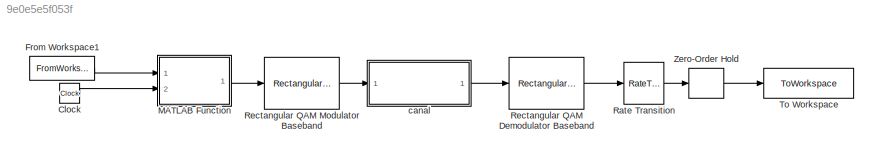
MODEL slx_9e0e5e5f053f
KIND model
CONFIG AbsTol = auto
CONFIG EnableMultiTasking = off
CONFIG FixedStep = auto
CONFIG MaxStep = 1e-3
CONFIG MinStep = 1e-4
CONFIG RelTol = 1e-3
CONFIG SampleTimeConstraint = Unconstrained
CONFIG SolverName = VariableStepAuto
CONFIG StartTime = 0.0
CONFIG StopTime = 203*6
BLOCK [Clock] Clock
BLOCK [FromWorkspace] From Workspace1
  VariableName = binary
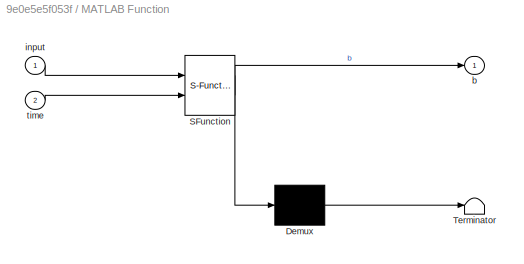
BLOCK [SubSystem] MATLAB Function
  ErrorFcn = Stateflow.Translate.translate
  PermitHierarchicalResolution = ExplicitOnly
  Ports = [2, 1]
  RequestExecContextInheritance = off
  SFBlockType = MATLAB Function
  TreatAsAtomicUnit = on
BLOCK [Demux] MATLAB Function/ Demux 
  Outputs = 1
  Ports = [1, 1]
BLOCK [S-Function] MATLAB Function/ SFunction 
  EnableBusSupport = on
  FunctionName = sf_sfun
  PortCounts = [2 2]
  Ports = [2, 2]
  SFcnIsStateOwnerBlock = off
  SFunctionDeploymentMode = off
  Tag = Stateflow S-Function 2
BLOCK [Terminator] MATLAB Function/ Terminator 
BLOCK [Outport] MATLAB Function/b
BLOCK [Inport] MATLAB Function/input
BLOCK [Inport] MATLAB Function/time
  Port = 2
BLOCK [RateTransition] Rate Transition
BLOCK [Reference] Rectangular QAM Demodulator Baseband  REF=commdigbbndam3/Rectangular QAM
Demodulator
Baseband
  Ports = [1, 1]
  SourceBlock = commdigbbndam3/Rectangular QAM\nDemodulator\nBaseband
  SourceProductBaseCode = CM
  SourceType = Rectangular QAM Demodulator Baseband
BLOCK [Reference] Rectangular QAM Modulator Baseband  REF=commdigbbndam3/Rectangular QAM
Modulator
Baseband
  Ports = [1, 1]
  SourceBlock = commdigbbndam3/Rectangular QAM\nModulator\nBaseband
  SourceProductBaseCode = CM
  SourceType = Rectangular QAM Modulator Baseband
BLOCK [ToWorkspace] To Workspace
  FixptAsFi = on
  MaxDataPoints = inf
  Ports = [1]
  SampleTime = -1
  SaveFormat = Timeseries
  VariableName = out
BLOCK [ZeroOrderHold] Zero-Order Hold
  SampleTime = 6
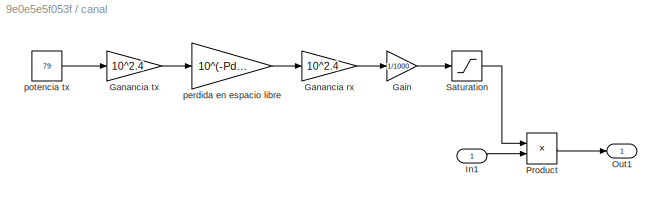
BLOCK [SubSystem] canal
  Ports = [1, 1]
  RequestExecContextInheritance = off
BLOCK [Gain] canal/Gain
  Gain = 1/1000
BLOCK [Gain] canal/Ganancia rx
  Gain = 10^2.4
BLOCK [Gain] canal/Ganancia tx
  Gain = 10^2.4
BLOCK [Inport] canal/In1
BLOCK [Outport] canal/Out1
BLOCK [Product] canal/Product
  Ports = [2, 1]
BLOCK [Saturate] canal/Saturation
  LowerLimit = 0
  UpperLimit = 1
BLOCK [Gain] canal/perdida en espacio libre
  Gain = 10^(-Pd/20)
BLOCK [Constant] canal/potencia tx
  Value = 79
LINE Clock:1 -> MATLAB Function:2
LINE From Workspace1:1 -> MATLAB Function:1
LINE MATLAB Function:1 -> Rectangular QAM Modulator Baseband:1
LINE Rate Transition:1 -> Zero-Order Hold:1
LINE Rectangular QAM Demodulator Baseband:1 -> Rate Transition:1
LINE Rectangular QAM Modulator Baseband:1 -> canal:1
LINE Zero-Order Hold:1 -> To Workspace:1
LINE canal/Gain:1 -> canal/Saturation:1
LINE canal/Ganancia rx:1 -> canal/Gain:1
LINE canal/Ganancia tx:1 -> canal/perdida en espacio libre:1
LINE canal/In1:1 -> canal/Product:2
LINE canal/Product:1 -> canal/Out1:1
LINE canal/Saturation:1 -> canal/Product:1
LINE canal/perdida en espacio libre:1 -> canal/Ganancia rx:1
LINE canal/potencia tx:1 -> canal/Ganancia tx:1
LINE canal:1 -> Rectangular QAM Demodulator Baseband:1
CHART MATLAB Function states=1 transitions=1
  STATE_LABEL 'eML_blk_kernel()'
  STATE_LABEL 'SCRIPT:\nfunction b = fcn(input,time)\n   b=input(floor(time/6)+1:floor(time/6)+3);\nend\n'
CHART  states=0 transitions=0
